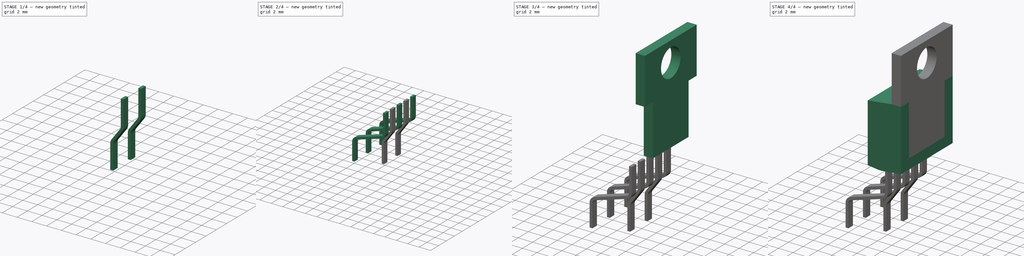
[diagram: build sequence overview — one tinted view per stage of 4, left to right]
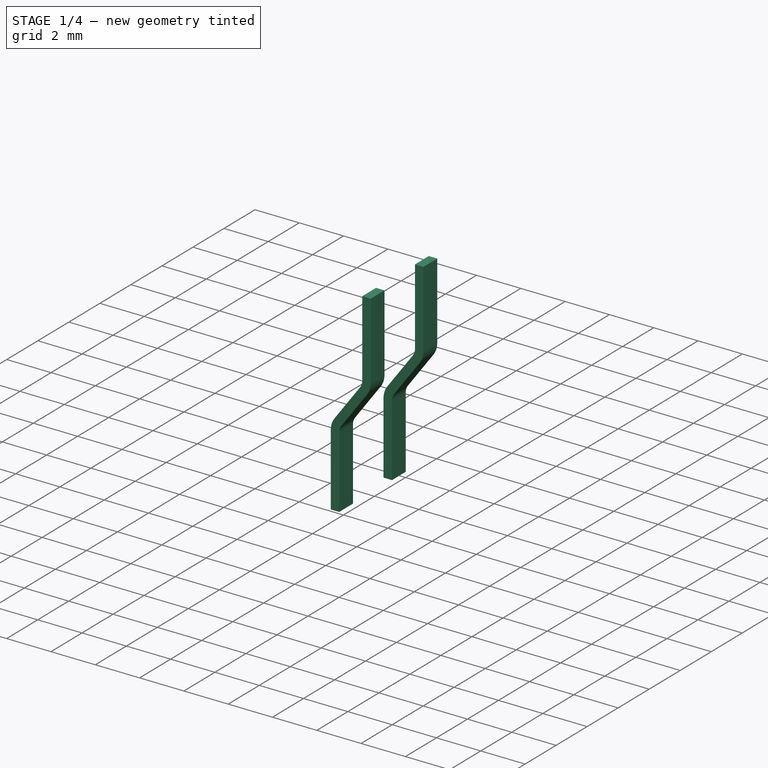
[diagram: stage 1 of 4 — iso view after this stage's code; geometry added in this stage tinted green]
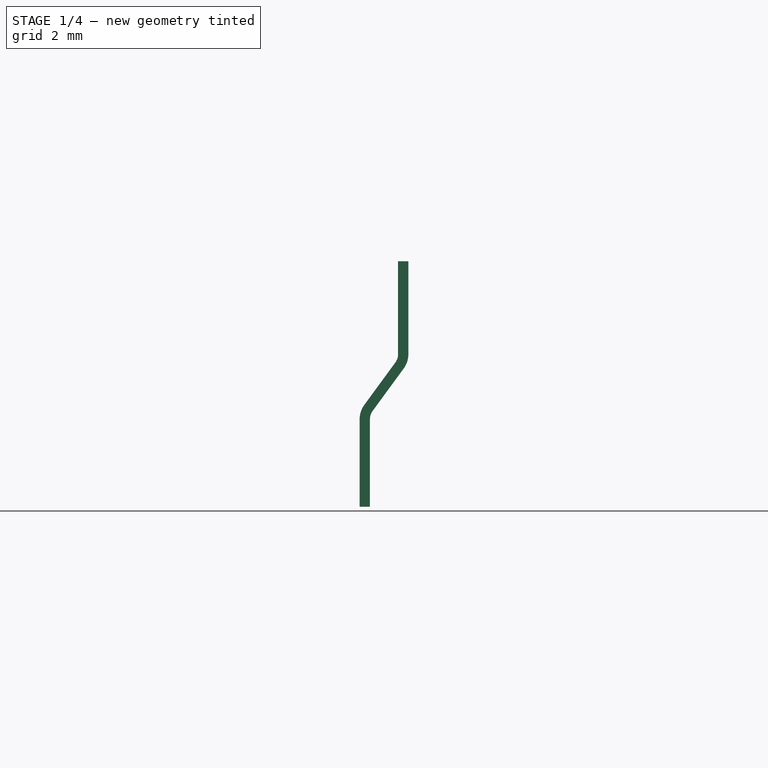
[diagram: stage 1 of 4 — front view after this stage's code; geometry added in this stage tinted green]
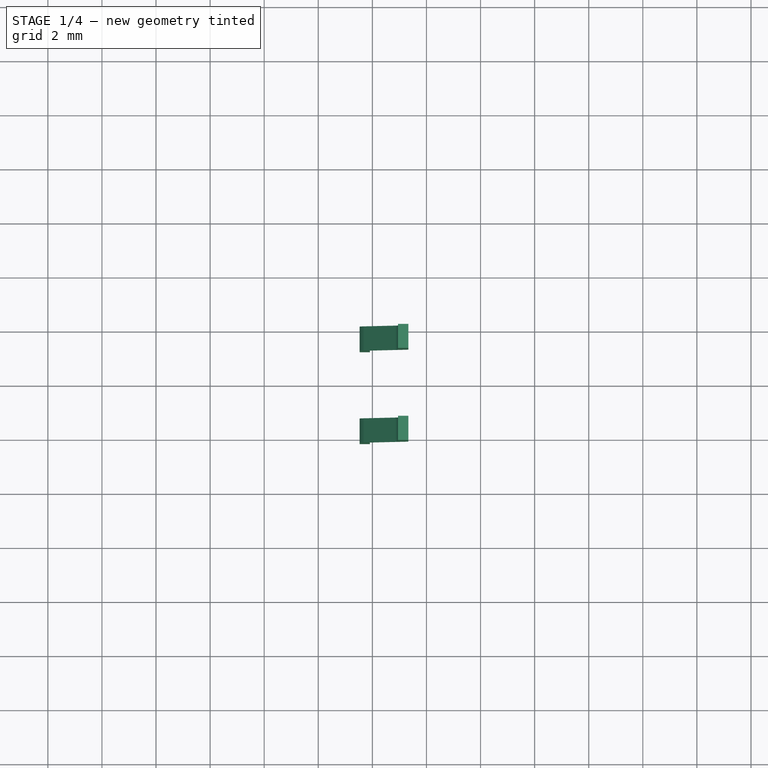
[diagram: stage 1 of 4 — top view after this stage's code; geometry added in this stage tinted green]
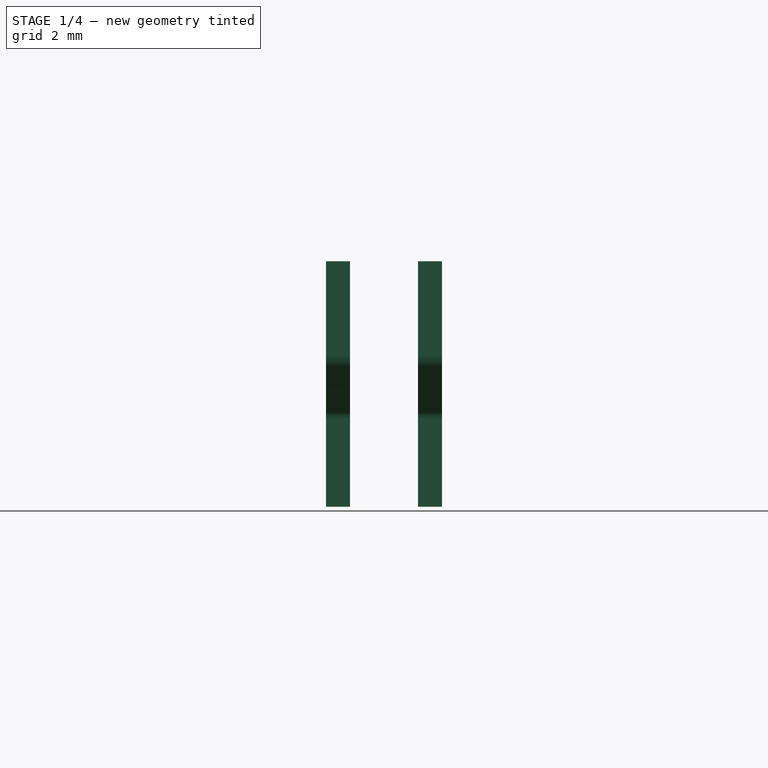
[diagram: stage 1 of 4 — right view after this stage's code; geometry added in this stage tinted green]
FCSTD DOCUMENT  (FreeCAD 1.0R38641 +468 (Git))
Label: to220-5
License: All rights reserved
LicenseURL: http://en.wikipedia.org/wiki/All_rights_reserved
objects: Sketcher::SketchObject×6, PartDesign::Pad×4, PartDesign::Body×4, PartDesign::Pocket×2, Part::FeaturePython×2, Part::Compound×1
note: 35 computed .brp shape members not serialized (recipe doc carries the construction recipe); baked Part::Feature solids carry a one-line shape summary decoded from their .brp

FEATURE [PartDesign::Body] Body002
  AllowCompound = false
  Group = -> [Sketch007,Pad002]
  Origin = -> Origin002
  Tip = -> Pad002
FEATURE [Sketcher::SketchObject] Sketch002  label="Sketch008"
  ArcFitTolerance = 0
  AttachmentSupport = -> [XZ_Plane003]
  FullyConstrained = true
  MakeInternals = false
  MapMode = 5
  Placement = pos=(0,0,0) rot=(1,0,0;1.5708rad)
  expr: Constraints[42] = <<Sketch007>>.Constraints.pinthlen
  expr: Constraints[49] = <<Sketch>>.Constraints.holetop
  expr: Constraints[50] = <<Sketch>>.Constraints.tabheight
  expr: Constraints[51] = <<Sketch>>.Constraints.pinoffset
  expr: Constraints[52] = <<Sketch>>.Constraints.bodyheight
  expr: Constraints[55] = <<Sketch>>.Constraints.tabhole
  expr: Constraints[56] = <<Sketch007>>.Constraints.pinbend
  expr: Constraints[57] = <<Sketch>>.Constraints.pinthick
  sketch-geometry (22):
    g0: LineSegment [constr] StartX=0 StartY=20.67 StartZ=0 EndX=0 EndY=17.88 EndZ=0
    g1: LineSegment [constr] StartX=0 StartY=17.88 StartZ=0 EndX=0 EndY=14.32 EndZ=0
    g2: LineSegment [constr] StartX=0 StartY=14.32 StartZ=0 EndX=0 EndY=5.68 EndZ=0
    g3: LineSegment StartX=-2.67 StartY=5.68 StartZ=0 EndX=-3.05 EndY=5.68 EndZ=0
    g4: LineSegment StartX=-3.05 StartY=5.68 StartZ=0 EndX=-3.05 EndY=2.23537 EndZ=0
    g5: LineSegment StartX=-3.14656 StartY=1.94001 StartZ=0 EndX=-4.30005 EndY=0.364465 EndZ=0
    g6: LineSegment StartX=-4.47 StartY=-0.155373 StartZ=0 EndX=-4.47 EndY=-3.4 EndZ=0
    g7: LineSegment StartX=-4.47 StartY=-3.4 StartZ=0 EndX=-4.09 EndY=-3.4 EndZ=0
    g8: LineSegment StartX=-4.09 StartY=-3.4 StartZ=0 EndX=-4.09 EndY=-0.155373 EndZ=0
    g9: LineSegment StartX=-3.99344 StartY=0.139989 StartZ=0 EndX=-2.83995 EndY=1.71554 EndZ=0
    g10: LineSegment StartX=-2.67 StartY=2.23536 StartZ=0 EndX=-2.67 EndY=5.68 EndZ=0
    g11: ArcOfCircle CenterX=-3.59 CenterY=-0.155373 CenterZ=0 NormalX=0 NormalY=0 NormalZ=1 AngleXU=0 Radius=0.88 StartAngle=2.50964 EndAngle=3.14159
    g12: ArcOfCircle CenterX=-3.59 CenterY=-0.155373 CenterZ=0 NormalX=0 NormalY=0 NormalZ=1 AngleXU=0 Radius=0.5 StartAngle=2.50964 EndAngle=3.14159
    g13: ArcOfCircle CenterX=-3.55 CenterY=2.23537 CenterZ=0 NormalX=0 NormalY=0 NormalZ=1 AngleXU=0 Radius=0.5 StartAngle=5.65123 EndAngle=6.28319
    g14: ArcOfCircle CenterX=-3.55 CenterY=2.23537 CenterZ=0 NormalX=0 NormalY=0 NormalZ=1 AngleXU=0 Radius=0.88 StartAngle=5.65123 EndAngle=6.28318
    g15: LineSegment [constr] StartX=-3.44193 StartY=1.53657 StartZ=0 EndX=-3.13531 EndY=1.3121 EndZ=0
    g16: LineSegment [constr] StartX=-3.05 StartY=2.23537 StartZ=0 EndX=-3.07475 EndY=2.08 EndZ=0
    g17: LineSegment [constr] StartX=-3.14656 StartY=1.94001 StartZ=0 EndX=-3.07475 EndY=2.08 EndZ=0
    g18: LineSegment [constr] StartX=-3.99344 StartY=0.139989 StartZ=0 EndX=-4.06525 EndY=0 EndZ=0
    g19: LineSegment [constr] StartX=-4.06525 StartY=0 StartZ=0 EndX=-4.09 EndY=-0.155373 EndZ=0
    g20: LineSegment [constr] StartX=0 StartY=5.68 StartZ=0 EndX=-2.67 EndY=5.68 EndZ=0
    g21: LineSegment [constr] StartX=0 StartY=5.68 StartZ=0 EndX=0 EndY=0 EndZ=0
  constraints (59):
    c: Vertical(g0)
    c: Vertical(g1)
    c: Coincident(g1,g0)
    c: Coincident(g2,g1)
    c: Vertical(g2)
    c: Horizontal(g3)
    c: Coincident(g3,g4)
    c: Vertical(g4)
    c: Vertical(g6)
    c: Coincident(g6,g7)
    c: Coincident(g7,g8)
    c: Vertical(g8)
    c: Coincident(g10,g3)
    c: Vertical(g10)
    c: Parallel(g9,g5)
    c: Horizontal(g7)
    c: Tangent(g6,g11)
    c: Tangent(g5,g11)
    c: Tangent(g8,g12)
    c: Tangent(g9,g12)
    c: Tangent(g5,g13)
    c: Tangent(g4,g13)
    c: Tangent(g9,g14)
    c: PointOnObject(g15,g5)
    c: PointOnObject(g15,g9)
    c: Radius(g12) = 0.5
    c: Coincident(g12,g11)
    c: Radius(g13) = 0.5
    c: Coincident(g14,g13)
    c: PointOnObject(g16,g13)
    c: Coincident(g17,g5)
    c: Coincident(g17,g16)
    c: Equal(g16,g17)
    c: Coincident(g16,g4)
    c: Coincident(g18,g9)
    c: PointOnObject(g18,g12)
    c: Coincident(g19,g8)
    c: Equal(g18,g19)
    c: Coincident(g10,g14)
    c: Coincident(g19,g18)
    c: Equal(g3,g15)
    c: Equal(g15,g7)
    c: DistanceY(g7,g18) = 3.4
    c: Coincident(g20,g2)
    c: Coincident(g20,g3)
    c: Horizontal(g20)
    c: Coincident(g21,g2)
    c: Coincident(g21,g-1)
    c: Vertical(g21)
    c: DistanceY(g0,g0) = 2.79
    c: DistanceY(g1,g0) = 6.35
    c: DistanceX(g20,g20) = 2.67
    c: DistanceY(g2,g2) = 8.64
    c: PointOnObject(g18,g-1)
    c: DistanceX(g6,g21) = 4.47
    c: DistanceY(g21,g0) = 17.88
    c: DistanceY(g16,g0) = 15.8
    c: DistanceX(g3,g3) = 0.38
    c: Distance(g15,g9) = 0.5
FEATURE [PartDesign::Pad] Pad003
  Direction = (0,-1,2e-16)
  Length = 0.445
  Length2 = 0.445
  Placement = pos=(0,0,0) rot=(1,0,0;1.5708rad)
  Profile = -> Sketch002
  ReferenceAxis = -> Sketch002 [N_Axis]
  Suppressed = false
  Type = 4
  expr: Length = 0.89 mm / 2
  expr: Length2 = 0.89 mm / 2
FEATURE [Part::FeaturePython] Array001  # Draft array (typed FeaturePython)
  AlwaysSyncPlacement = false
  Angle = 360
  ArrayType = 0
  Axis = (0,0,1)
  Base = -> Body003
  Center = (0,0,0)
  Count = 2
  ExpandArray = false
  Fuse = false
  IntervalAxis = (0,0,0)
  IntervalX = (3.4,0,0)
  IntervalY = (0,3.4,0)
  IntervalZ = (0,0,100)
  NumberCircles = 3
  NumberPolar = 5
  NumberX = 1
  NumberY = 2
  NumberZ = 1
  Placement = pos=(0,-1.7,0) rot=(0,0,1;0rad)
  PlacementList = 2 placements: [(0,0,0),(0,3.4,0)]
  RadialDistance = 50
  ScaleList = (2) [(1,1,1),(1,1,1)]
  Symmetry = 1
  TangentialDistance = 25
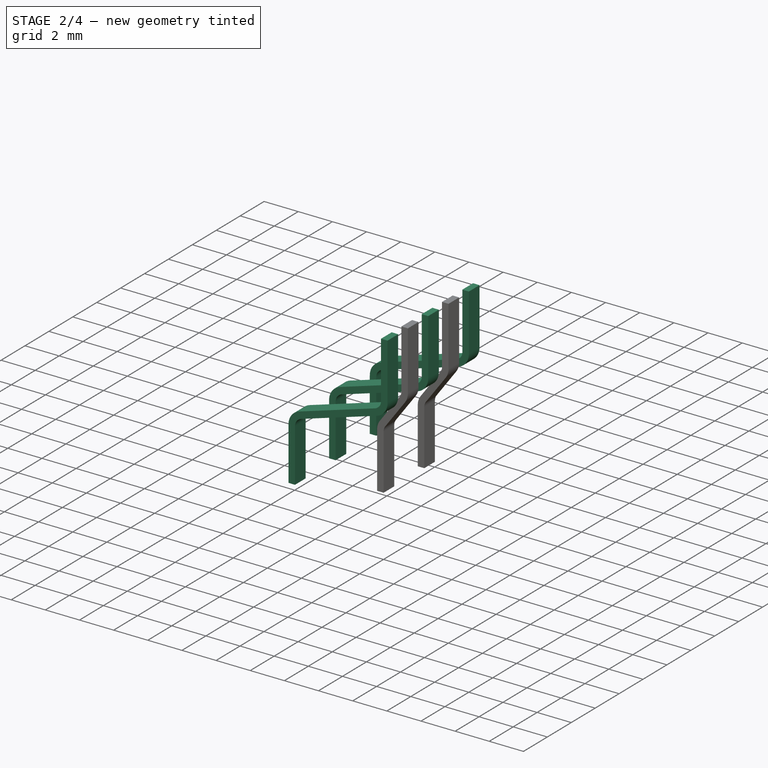
[diagram: stage 2 of 4 — iso view after this stage's code; geometry added in this stage tinted green]
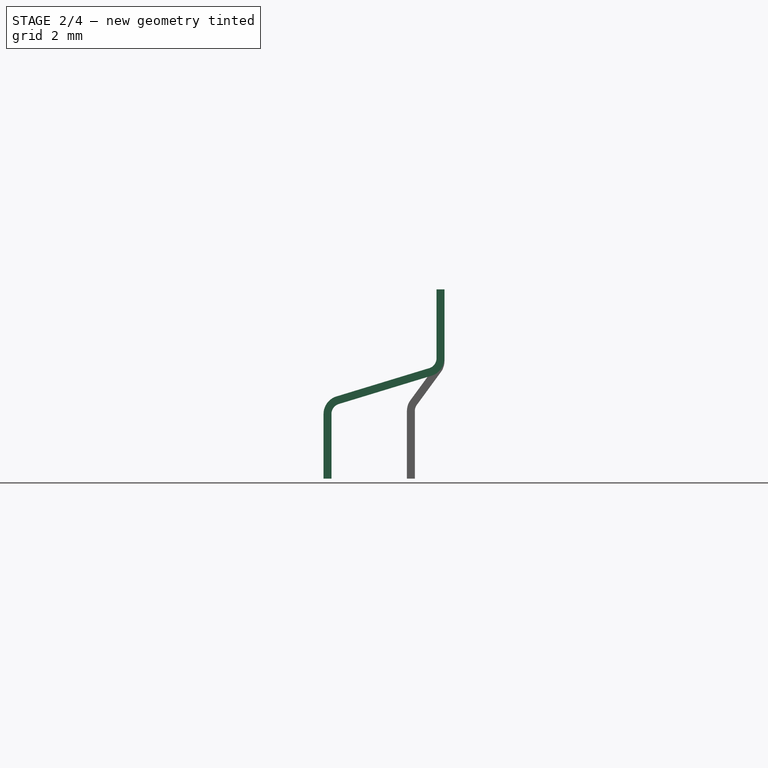
[diagram: stage 2 of 4 — front view after this stage's code; geometry added in this stage tinted green]
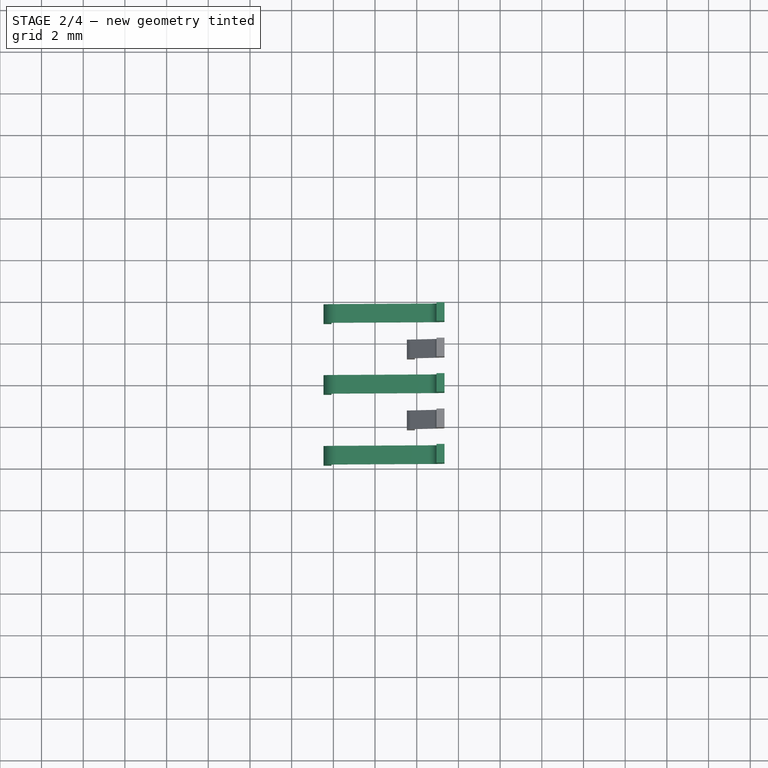
[diagram: stage 2 of 4 — top view after this stage's code; geometry added in this stage tinted green]
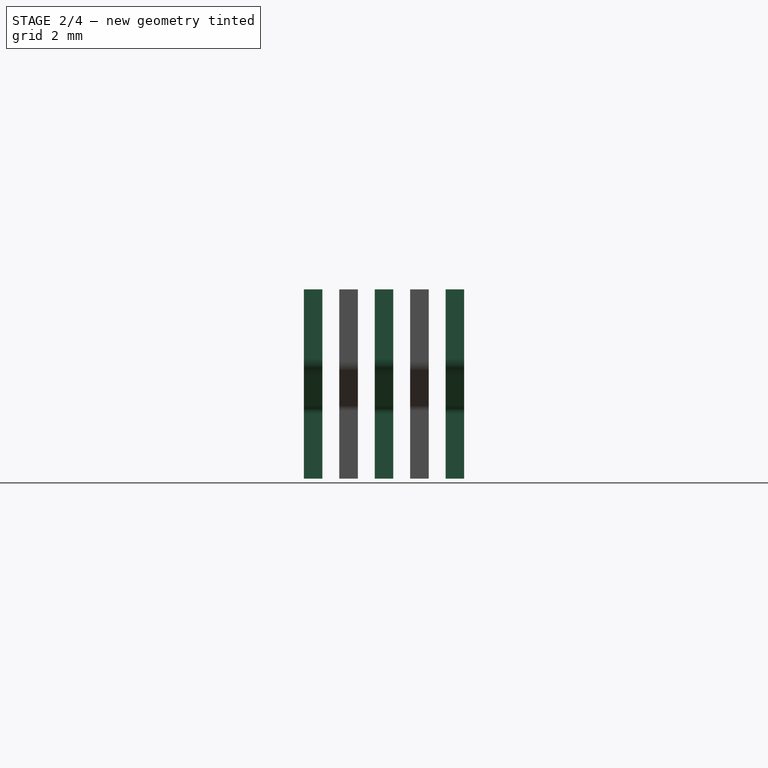
[diagram: stage 2 of 4 — right view after this stage's code; geometry added in this stage tinted green]
FEATURE [PartDesign::Body] Body001  label="Tab"
  AllowCompound = false
  Group = -> [Sketch005,Pad001,Sketch006,Pocket001]
  Origin = -> Origin001
  Tip = -> Pocket001
FEATURE [Sketcher::SketchObject] Sketch007
  ArcFitTolerance = 0
  AttachmentSupport = -> [XZ_Plane002]
  FullyConstrained = true
  MakeInternals = false
  MapMode = 5
  Placement = pos=(0,0,0) rot=(1,0,0;1.5708rad)
  expr: Constraints[50] = <<Sketch>>.Constraints.holetop
  expr: Constraints[51] = <<Sketch>>.Constraints.tabheight
  expr: Constraints[52] = <<Sketch>>.Constraints.tabhole
  expr: Constraints[53] = <<Sketch>>.Constraints.pinthick
  expr: Constraints[54] = <<Sketch>>.Constraints.pinoffset
  expr: Constraints[55] = <<Sketch>>.Constraints.bodyheight
  sketch-geometry (22):
    g0: LineSegment [constr] StartX=0 StartY=20.67 StartZ=0 EndX=0 EndY=17.88 EndZ=0
    g1: LineSegment [constr] StartX=0 StartY=17.88 StartZ=0 EndX=0 EndY=14.32 EndZ=0
    g2: LineSegment [constr] StartX=0 StartY=14.32 StartZ=0 EndX=0 EndY=5.68 EndZ=0
    g3: LineSegment StartX=-2.67 StartY=5.68 StartZ=0 EndX=-3.05 EndY=5.68 EndZ=0
    g4: LineSegment StartX=-3.05 StartY=5.68 StartZ=0 EndX=-3.05 EndY=2.37754 EndZ=0
    g5: LineSegment StartX=-3.40412 StartY=1.89929 StartZ=0 EndX=-7.84675 EndY=0.544173 EndZ=0
    g6: LineSegment StartX=-8.47 StartY=-0.297541 StartZ=0 EndX=-8.47 EndY=-3.4 EndZ=0
    g7: LineSegment StartX=-8.47 StartY=-3.4 StartZ=0 EndX=-8.09 EndY=-3.4 EndZ=0
    g8: LineSegment StartX=-8.09 StartY=-3.4 StartZ=0 EndX=-8.09 EndY=-0.297541 EndZ=0
    g9: LineSegment StartX=-7.73588 StartY=0.180706 StartZ=0 EndX=-3.29325 EndY=1.53583 EndZ=0
    g10: LineSegment StartX=-2.67 StartY=2.37754 StartZ=0 EndX=-2.67 EndY=5.68 EndZ=0
    g11: ArcOfCircle CenterX=-7.59 CenterY=-0.297541 CenterZ=0 NormalX=0 NormalY=0 NormalZ=1 AngleXU=0 Radius=0.88 StartAngle=1.86686 EndAngle=3.14159
    g12: ArcOfCircle CenterX=-7.59 CenterY=-0.297541 CenterZ=0 NormalX=0 NormalY=0 NormalZ=1 AngleXU=0 Radius=0.5 StartAngle=1.86686 EndAngle=3.14159
    g13: ArcOfCircle CenterX=-3.55 CenterY=2.37754 CenterZ=0 NormalX=0 NormalY=0 NormalZ=1 AngleXU=0 Radius=0.5 StartAngle=5.00845 EndAngle=6.28319
    g14: ArcOfCircle CenterX=-3.55 CenterY=2.37754 CenterZ=0 NormalX=0 NormalY=0 NormalZ=1 AngleXU=0 Radius=0.88 StartAngle=5.00845 EndAngle=6.28319
    g15: LineSegment [constr] StartX=-5.40413 StartY=1.28924 StartZ=0 EndX=-5.29325 EndY=0.925773 EndZ=0
    g16: LineSegment [constr] StartX=-3.05 StartY=2.37754 StartZ=0 EndX=-3.14817 EndY=2.08 EndZ=0
    g17: LineSegment [constr] StartX=-3.40412 StartY=1.89929 StartZ=0 EndX=-3.14817 EndY=2.08 EndZ=0
    g18: LineSegment [constr] StartX=-7.73588 StartY=0.180706 StartZ=0 EndX=-7.99183 EndY=0 EndZ=0
    g19: LineSegment [constr] StartX=-7.99183 StartY=0 StartZ=0 EndX=-8.09 EndY=-0.297541 EndZ=0
    g20: LineSegment [constr] StartX=0 StartY=5.68 StartZ=0 EndX=-2.67 EndY=5.68 EndZ=0
    g21: LineSegment [constr] StartX=0 StartY=5.68 StartZ=0 EndX=0 EndY=0 EndZ=0
  constraints (59):
    c: Vertical(g0)
    c: Vertical(g1)
    c: Coincident(g1,g0)
    c: Coincident(g2,g1)
    c: Vertical(g2)
    c: Horizontal(g3)
    c: Coincident(g3,g4)
    c: Vertical(g4)
    c: Vertical(g6)
    c: Coincident(g6,g7)
    c: Coincident(g7,g8)
    c: Vertical(g8)
    c: Coincident(g10,g3)
    c: Vertical(g10)
    c: Parallel(g9,g5)
    c: Horizontal(g7)
    c: Tangent(g6,g11)
    c: Tangent(g5,g11)
    c: Tangent(g8,g12)
    c: Tangent(g9,g12)
    c: Tangent(g5,g13)
    c: Tangent(g4,g13)
    c: Tangent(g9,g14)
    c: PointOnObject(g15,g5)
    c: PointOnObject(g15,g9)
    c: Radius(g12) = 0.5
    c: Coincident(g12,g11)
    c: Radius(g13) = 0.5
    c: Coincident(g14,g13)
    c: PointOnObject(g16,g13)
    c: Coincident(g17,g5)
    c: Coincident(g17,g16)
    c: Equal(g16,g17)
    c: Coincident(g16,g4)
    c: Coincident(g18,g9)
    c: PointOnObject(g18,g12)
    c: Coincident(g19,g8)
    c: Equal(g18,g19)
    c: Coincident(g10,g14)
    c: Coincident(g19,g18)
    c: Equal(g3,g15)
    c: Equal(g15,g7)
    c: DistanceY(g7,g18) = 3.4  'pinthlen'
    c: Coincident(g20,g2)
    c: Coincident(g20,g3)
    c: Horizontal(g20)
    c: Coincident(g21,g2)
    c: Coincident(g21,g-1)
    c: Vertical(g21)
    c: DistanceX(g15,g9) = 2
    c: DistanceY(g0,g0) = 2.79
    c: DistanceY(g1,g0) = 6.35
    c: DistanceY(g21,g0) = 17.88
    c: DistanceX(g3,g3) = 0.38
    c: DistanceX(g20,g20) = 2.67
    c: DistanceY(g2,g2) = 8.64
    c: PointOnObject(g18,g-1)
    c: DistanceY(g16,g0) = 15.8  'pinbend'
    c: DistanceX(g6,g21) = 8.47
FEATURE [PartDesign::Pad] Pad002
  Direction = (0,-1,2e-16)
  Length = 0.445
  Length2 = 0.445
  Placement = pos=(0,0,0) rot=(1,0,0;1.5708rad)
  Profile = -> Sketch007
  ReferenceAxis = -> Sketch007 [N_Axis]
  Suppressed = false
  Type = 4
  expr: Length = 0.89 mm / 2
  expr: Length2 = 0.89 mm / 2
FEATURE [PartDesign::Body] Body003
  AllowCompound = false
  Group = -> [Sketch002,Pad003]
  Origin = -> Origin003
  Tip = -> Pad003
FEATURE [Part::FeaturePython] Array  # Draft array (typed FeaturePython)
  AlwaysSyncPlacement = false
  Angle = 360
  ArrayType = 0
  Axis = (0,0,1)
  Base = -> Body002
  Center = (0,0,0)
  Count = 3
  ExpandArray = false
  Fuse = false
  IntervalAxis = (0,0,0)
  IntervalX = (3.4,0,0)
  IntervalY = (0,3.4,0)
  IntervalZ = (0,0,100)
  NumberCircles = 3
  NumberPolar = 5
  NumberX = 1
  NumberY = 3
  NumberZ = 1
  Placement = pos=(0,-3.4,0) rot=(0,0,1;0rad)
  PlacementList = 3 placements: arithmetic series from (0,0,0) step (0,3.4,0) to (0,6.8,0)
  RadialDistance = 50
  ScaleList = (3) [(1,1,1),(1,1,1),(1,1,1)]
  Symmetry = 1
  TangentialDistance = 25
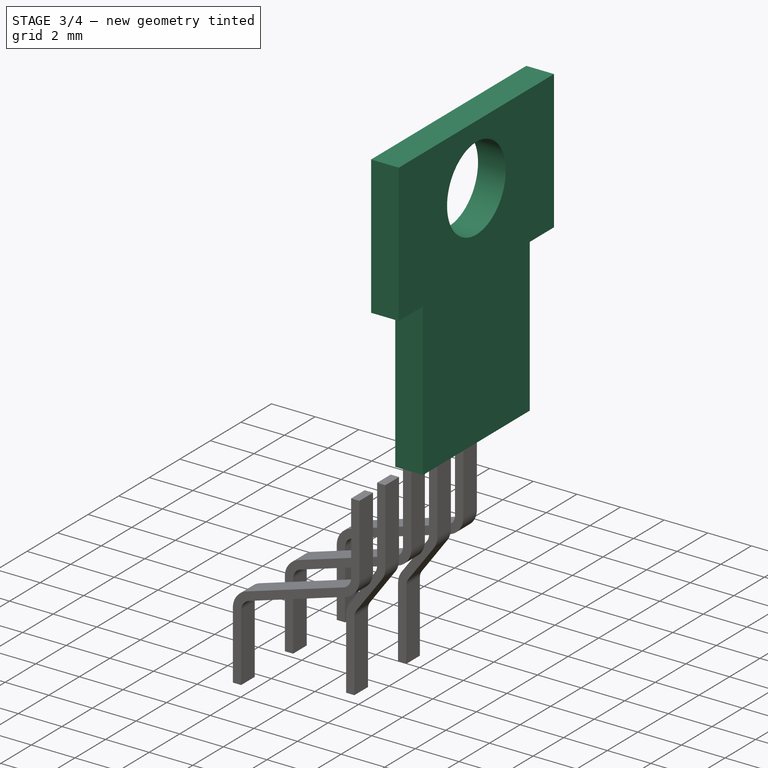
[diagram: stage 3 of 4 — iso view after this stage's code; geometry added in this stage tinted green]
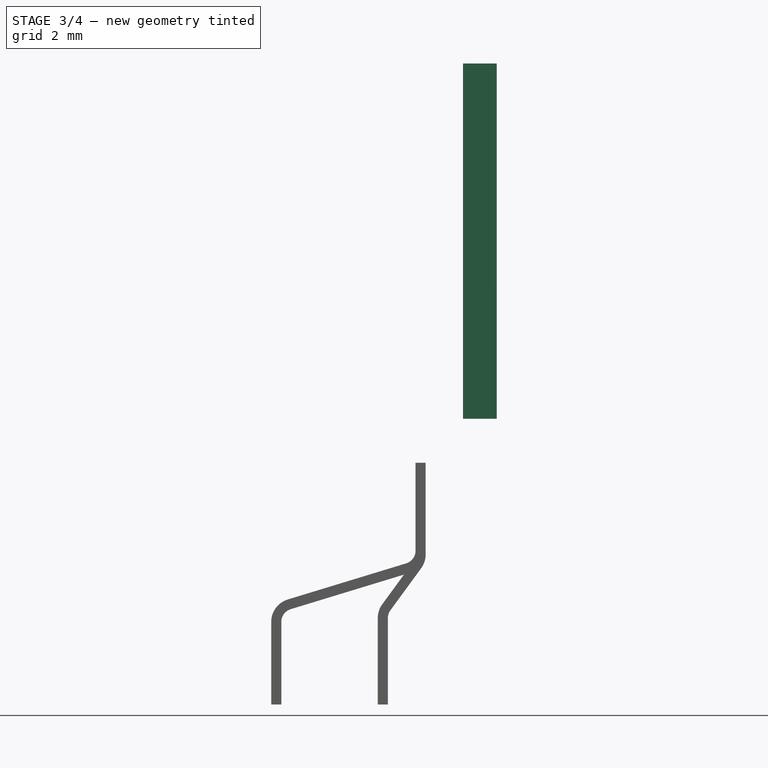
[diagram: stage 3 of 4 — front view after this stage's code; geometry added in this stage tinted green]
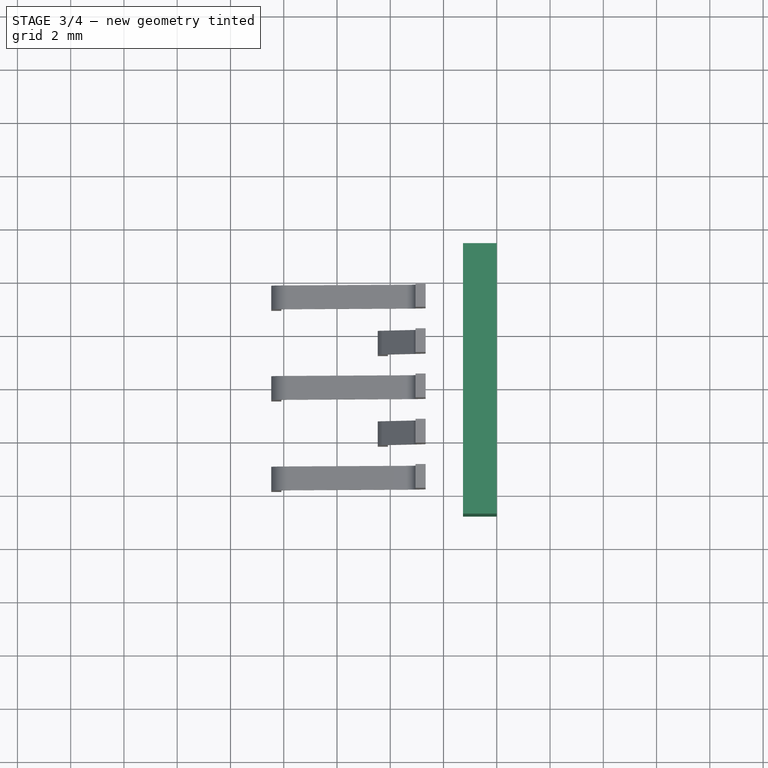
[diagram: stage 3 of 4 — top view after this stage's code; geometry added in this stage tinted green]
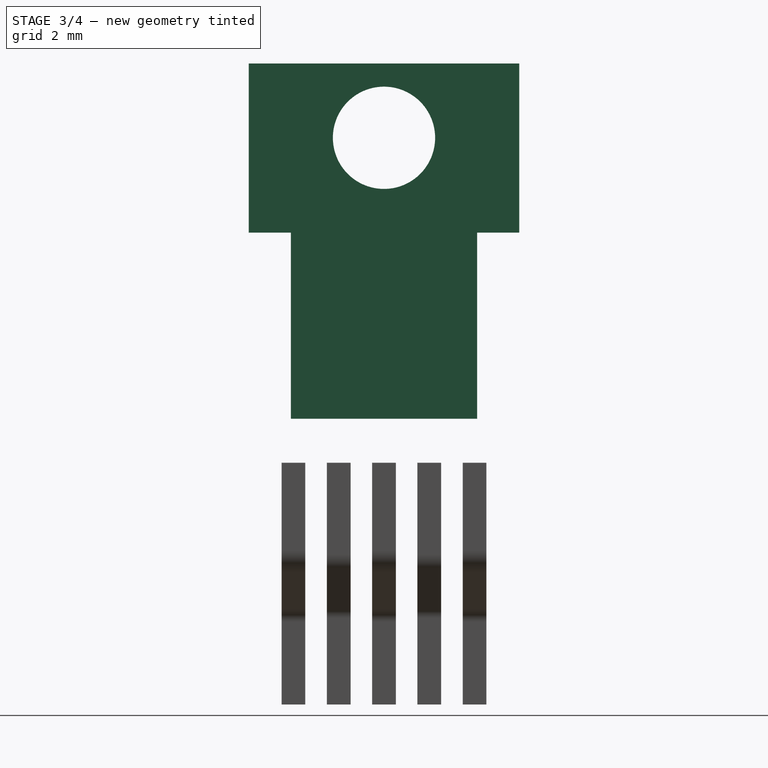
[diagram: stage 3 of 4 — right view after this stage's code; geometry added in this stage tinted green]
FEATURE [PartDesign::Body] Body
  AllowCompound = false
  Group = -> [Sketch003,Pad,Sketch,Pocket]
  Origin = -> Origin
  Tip = -> Pocket
FEATURE [Sketcher::SketchObject] Sketch005  label="Sketch002"
  ArcFitTolerance = 0
  AttachmentSupport = -> [YZ_Plane001]
  FullyConstrained = true
  MakeInternals = false
  MapMode = 5
  Placement = pos=(0,0,0) rot=(0.57735,0.57735,0.57735;2.0944rad)
  expr: Constraints[17] = <<Sketch>>.Constraints.tabheight
  expr: Constraints[25] = <<Sketch>>.Constraints.holetop
  expr: Constraints[26] = <<Sketch>>.Constraints.tabhole
  sketch-geometry (10):
    g0: LineSegment StartX=-3.495 StartY=7.33 StartZ=0 EndX=-3.495 EndY=14.32 EndZ=0
    g1: LineSegment StartX=-3.495 StartY=14.32 StartZ=0 EndX=-5.08 EndY=14.32 EndZ=0
    g2: LineSegment StartX=-5.08 StartY=14.32 StartZ=0 EndX=-5.08 EndY=20.67 EndZ=0
    g3: LineSegment StartX=-5.08 StartY=20.67 StartZ=0 EndX=5.08 EndY=20.67 EndZ=0
    g4: LineSegment StartX=5.08 StartY=20.67 StartZ=0 EndX=5.08 EndY=14.32 EndZ=0
    g5: LineSegment StartX=5.08 StartY=14.32 StartZ=0 EndX=3.495 EndY=14.32 EndZ=0
    g6: LineSegment StartX=3.495 StartY=14.32 StartZ=0 EndX=3.495 EndY=7.33 EndZ=0
    g7: LineSegment StartX=3.495 StartY=7.33 StartZ=0 EndX=-3.495 EndY=7.33 EndZ=0
    g8: LineSegment [constr] StartX=0 StartY=0 StartZ=0 EndX=0 EndY=17.88 EndZ=0
    g9: LineSegment [constr] StartX=0 StartY=17.88 StartZ=0 EndX=0 EndY=20.67 EndZ=0
  constraints (30):
    c: Vertical(g0)
    c: Coincident(g0,g1)
    c: Horizontal(g1)
    c: Coincident(g1,g2)
    c: Vertical(g2)
    c: Coincident(g2,g3)
    c: Coincident(g3,g4)
    c: Vertical(g4)
    c: Coincident(g4,g5)
    c: Horizontal(g5)
    c: Coincident(g5,g6)
    c: Vertical(g6)
    c: Coincident(g6,g7)
    c: Coincident(g7,g0)
    c: Equal(g0,g7)
    c: Equal(g7,g6)
    c: Symmetric(g6,g0,g-2)
    c: DistanceY(g2) = 6.35
    c: DistanceX(g3) = 10.16  'tabwidth'
    c: Symmetric(g2,g3,g-2)
    c: Vertical(g8)
    c: Coincident(g9,g8)
    c: PointOnObject(g9,g3)
    c: Vertical(g9)
    c: Coincident(g8,g-1)
    c: DistanceY(g9) = 2.79
    c: DistanceY(g8) = 17.88
    c: DistanceX(g7,g7) = 6.99  'tabcut'
    c: DistanceY(g6,g8) = 10.55  'tabbot'
    c: DistanceY(g6,g6) = 6.99  'tabcuttop'
FEATURE [PartDesign::Pad] Pad001
  Direction = (1,0,0)
  Length = 1.27
  Length2 = 10
  Placement = pos=(0,0,0) rot=(1,1,1;2.0944rad)
  Profile = -> Sketch005
  ReferenceAxis = -> Sketch005 [N_Axis]
  Reversed = true
  Suppressed = false
  Type = 0
  expr: Length = <<Sketch>>.Constraints.tabthick
FEATURE [Sketcher::SketchObject] Sketch006
  ArcFitTolerance = 0
  AttachmentSupport = -> [YZ_Plane001]
  FullyConstrained = true
  MakeInternals = false
  MapMode = 5
  Placement = pos=(0,0,0) rot=(0.57735,0.57735,0.57735;2.0944rad)
  expr: Constraints[2] = <<Sketch>>.Constraints.tabhole
  sketch-geometry (1):
    g0: Circle CenterX=0 CenterY=17.88 CenterZ=0 NormalX=0 NormalY=0 NormalZ=1 AngleXU=0 Radius=1.92
  constraints (3):
    c: PointOnObject(g0,g-2)
    c: Diameter(g0) = 3.84  'holedia'
    c: DistanceY(g-1,g0) = 17.88
FEATURE [PartDesign::Pocket] Pocket001
  BaseFeature = -> Pad001
  Direction = (-1,0,0)
  Length = 5
  Length2 = 5
  Midplane = true
  Placement = pos=(0,0,0) rot=(1,1,1;2.0944rad)
  Profile = -> Sketch006
  ReferenceAxis = -> Sketch006 [N_Axis]
  Suppressed = false
  Type = 1
FEATURE [Part::Compound] Compound  label="Pins"
  Links = -> [Array,Array001]
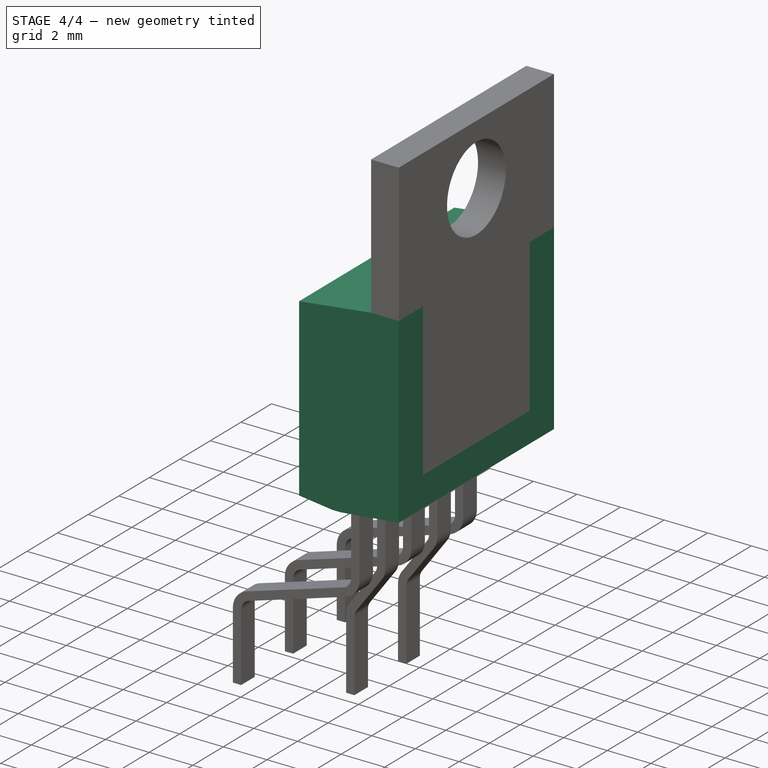
[diagram: stage 4 of 4 — iso view after this stage's code; geometry added in this stage tinted green]
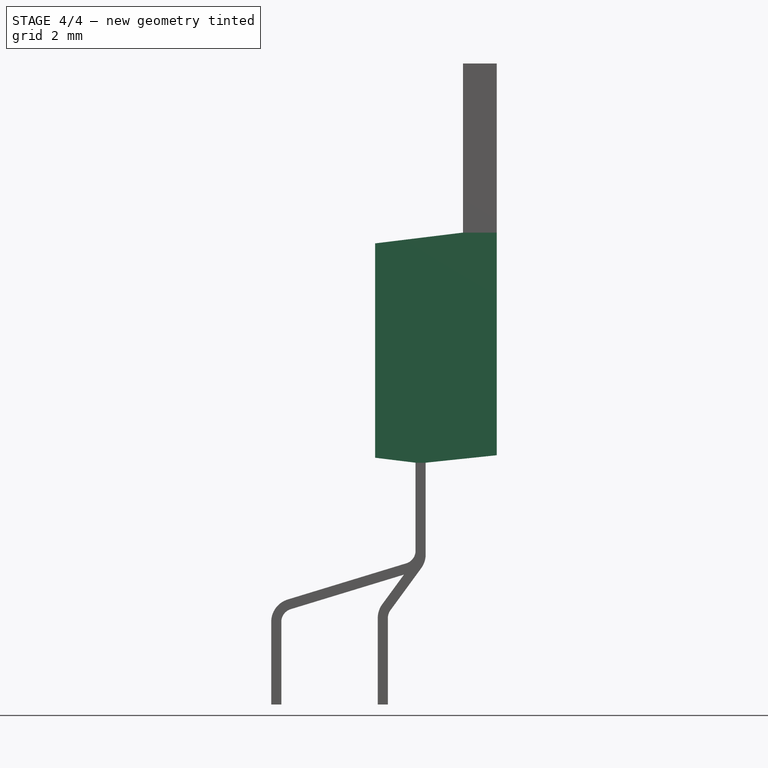
[diagram: stage 4 of 4 — front view after this stage's code; geometry added in this stage tinted green]
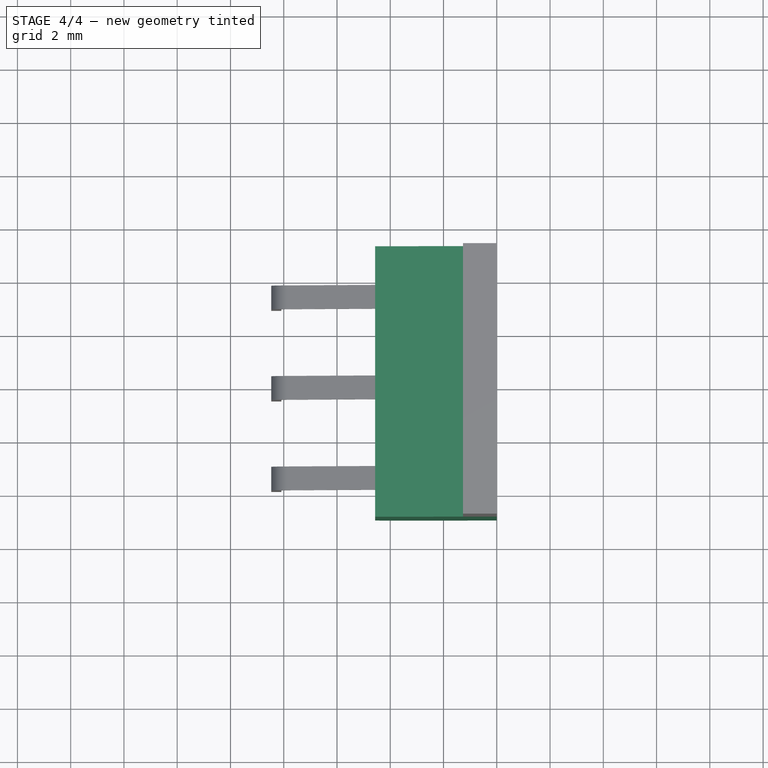
[diagram: stage 4 of 4 — top view after this stage's code; geometry added in this stage tinted green]
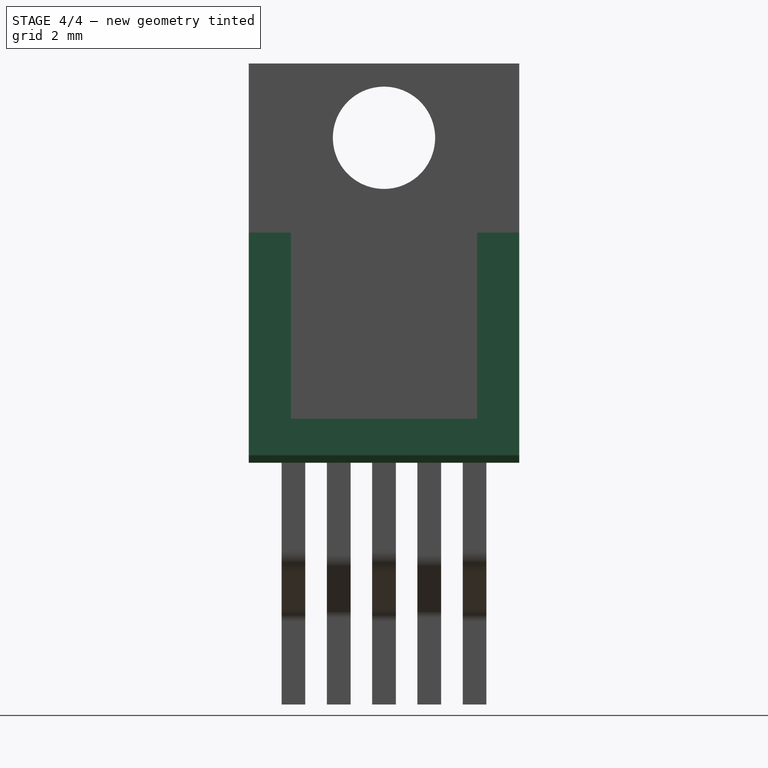
[diagram: stage 4 of 4 — right view after this stage's code; geometry added in this stage tinted green]
FEATURE [Sketcher::SketchObject] Sketch003  label="Sketch"
  ArcFitTolerance = 0
  AttachmentSupport = -> [XZ_Plane]
  FullyConstrained = true
  MakeInternals = false
  MapMode = 5
  Placement = pos=(0,0,0) rot=(1,0,0;1.5708rad)
  sketch-geometry (9):
    g0: LineSegment [constr] StartX=0 StartY=20.67 StartZ=0 EndX=0 EndY=17.88 EndZ=0
    g1: LineSegment [constr] StartX=0 StartY=17.88 StartZ=0 EndX=0 EndY=14.32 EndZ=0
    g2: LineSegment StartX=-2.67 StartY=5.68 StartZ=0 EndX=0 EndY=5.96063 EndZ=0
    g3: LineSegment StartX=0 StartY=5.96063 StartZ=0 EndX=0 EndY=14.32 EndZ=0
    g4: LineSegment StartX=0 StartY=14.32 StartZ=0 EndX=-1.27 EndY=14.32 EndZ=0
    g5: LineSegment StartX=-1.27 StartY=14.32 StartZ=0 EndX=-4.57 EndY=13.9148 EndZ=0
    g6: LineSegment StartX=-4.57 StartY=13.9148 StartZ=0 EndX=-4.57 EndY=5.86663 EndZ=0
    g7: LineSegment StartX=-4.57 StartY=5.86663 StartZ=0 EndX=-3.05 EndY=5.68 EndZ=0
    g8: LineSegment StartX=-3.05 StartY=5.68 StartZ=0 EndX=-2.67 EndY=5.68 EndZ=0
  constraints (27):
    c: Vertical(g0)
    c: Coincident(g1,g0)
    c: Vertical(g1)
    c: Coincident(g2,g3)
    c: Vertical(g3)
    c: Coincident(g3,g4)
    c: Horizontal(g4)
    c: Coincident(g4,g5)
    c: Coincident(g5,g6)
    c: Vertical(g6)
    c: Coincident(g6,g7)
    c: Coincident(g7,g8)
    c: Coincident(g8,g2)
    c: Horizontal(g8)
    c: Coincident(g3,g1)
    c: DistanceY(g-1,g0) = 17.88  'tabhole'
    c: DistanceX(g2) = 2.67  'pinoffset'
    c: DistanceX(g8) = 0.38  'pinthick'
    c: DistanceX(g6,g2) = 4.57
    c: DistanceY(g2,g1) = 8.64  'bodyheight'
    c: Angle(g6,g5) = 1.69297
    c: Angle(g7,g6) = 1.69297
    c: Angle(g3,g2) = 1.67552
    c: DistanceX(g4,g4) = 1.27  'tabthick'
    c: PointOnObject(g3,g-2)
    c: DistanceY(g0,g0) = 2.79  'holetop'
    c: DistanceY(g3,g0) = 6.35  'tabheight'
FEATURE [PartDesign::Pad] Pad
  Direction = (0,-1,2e-16)
  Length = 5.08
  Length2 = 5.08
  Placement = pos=(0,0,0) rot=(1,0,0;1.5708rad)
  Profile = -> Sketch003
  ReferenceAxis = -> Sketch003 [N_Axis]
  Suppressed = false
  Type = 4
  expr: Length = <<Sketch002>>.Constraints.tabwidth / 2
  expr: Length2 = <<Sketch002>>.Constraints.tabwidth / 2
FEATURE [Sketcher::SketchObject] Sketch  label="Sketch001"
  ArcFitTolerance = 0
  AttachmentSupport = -> [YZ_Plane]
  FullyConstrained = true
  MakeInternals = false
  MapMode = 5
  Placement = pos=(0,0,0) rot=(0.57735,0.57735,0.57735;2.0944rad)
  expr: Constraints[11] = <<Sketch>>.Constraints.tabhole
  expr: Constraints[12] = <<Sketch002>>.Constraints.tabbot
  expr: Constraints[13] = <<Sketch002>>.Constraints.tabcuttop
  expr: Constraints[8] = <<Sketch002>>.Constraints.tabcut
  sketch-geometry (5):
    g0: LineSegment StartX=-3.495 StartY=14.32 StartZ=0 EndX=3.495 EndY=14.32 EndZ=0
    g1: LineSegment StartX=3.495 StartY=14.32 StartZ=0 EndX=3.495 EndY=7.33 EndZ=0
    g2: LineSegment StartX=3.495 StartY=7.33 StartZ=0 EndX=-3.495 EndY=7.33 EndZ=0
    g3: LineSegment StartX=-3.495 StartY=7.33 StartZ=0 EndX=-3.495 EndY=14.32 EndZ=0
    g4: LineSegment [constr] StartX=0 StartY=0 StartZ=0 EndX=0 EndY=17.88 EndZ=0
  constraints (14):
    c: Coincident(g0,g1)
    c: Coincident(g1,g2)
    c: Coincident(g2,g3)
    c: Coincident(g3,g0)
    c: Horizontal(g0)
    c: Vertical(g1)
    c: Vertical(g3)
    c: Symmetric(g1,g2,g-2)
    c: DistanceX(g2,g2) = 6.99
    c: Coincident(g4,g-1)
    c: PointOnObject(g4,g-2)
    c: DistanceY(g4,g4) = 17.88
    c: DistanceY(g1,g4) = 10.55
    c: DistanceY(g1,g1) = 6.99
FEATURE [PartDesign::Pocket] Pocket
  BaseFeature = -> Pad
  Direction = (-1,0,0)
  Length = 1.27
  Length2 = 5
  Placement = pos=(0,0,0) rot=(1,0,0;1.5708rad)
  Profile = -> Sketch
  ReferenceAxis = -> Sketch [N_Axis]
  Suppressed = false
  Type = 0
  expr: Length = <<Sketch>>.Constraints.tabthick
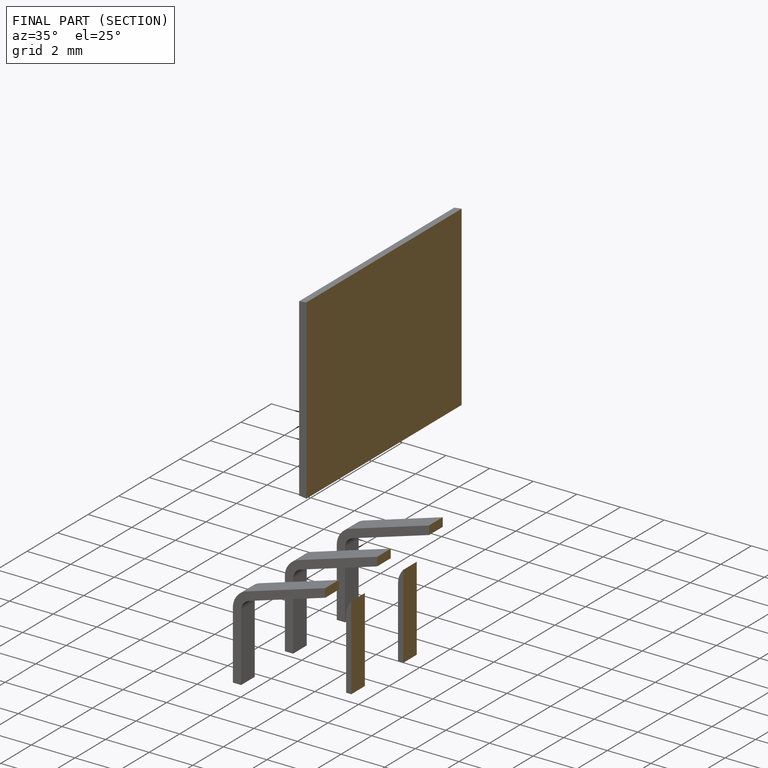
[diagram: finished part — half-section view (interior)]
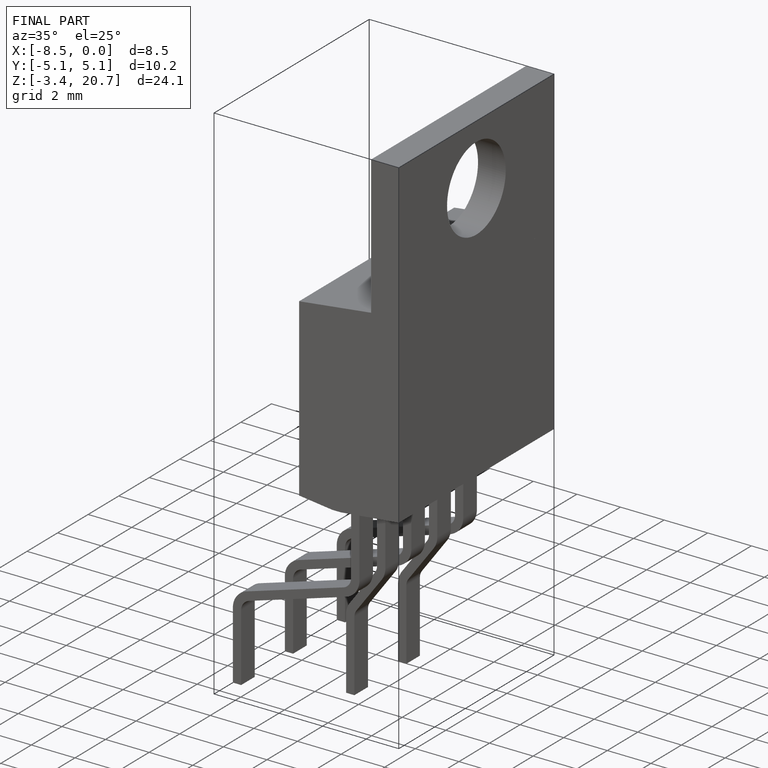
[diagram: finished part — iso view with bounding-box wireframe]
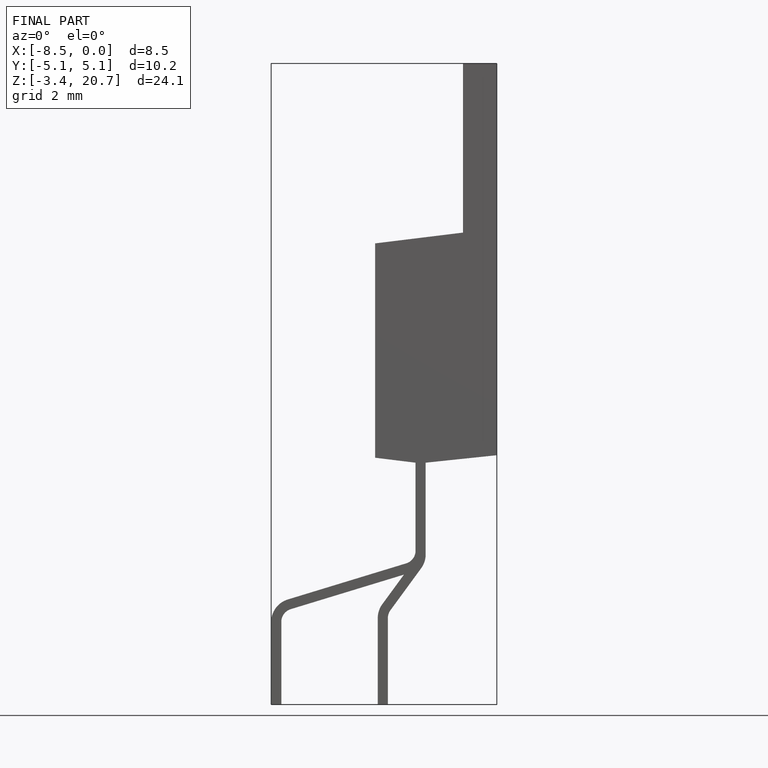
[diagram: finished part — front view with bounding-box wireframe]
